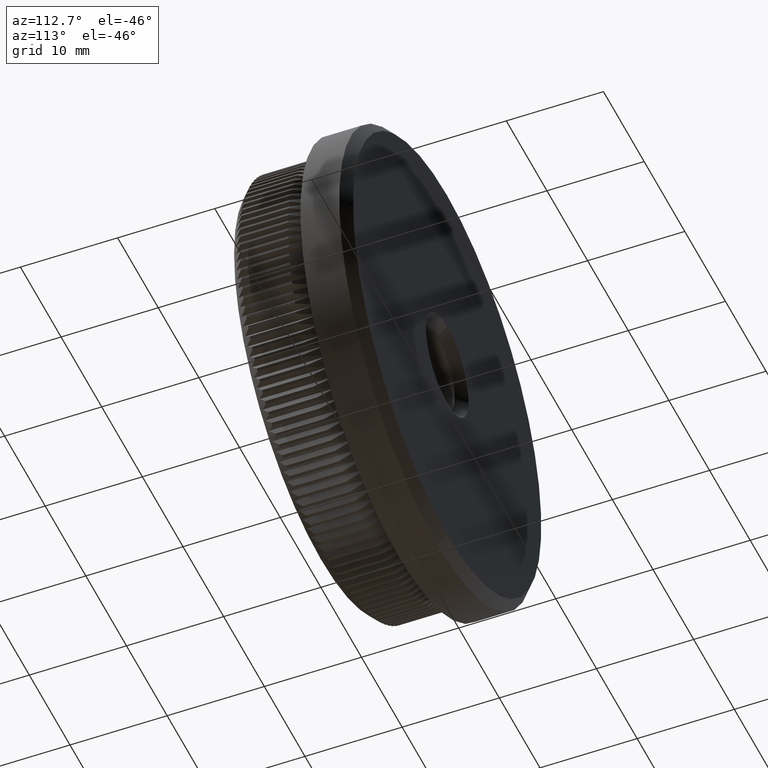
[diagram: clean part render]
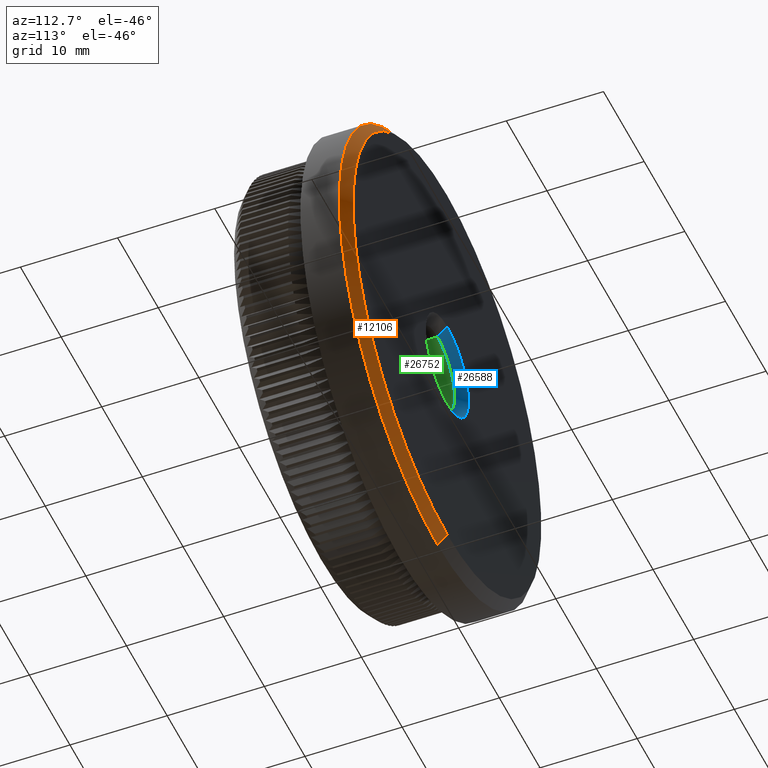
[diagram: same view with three faces highlighted in distinct colors, each labeled with its STEP entity id]
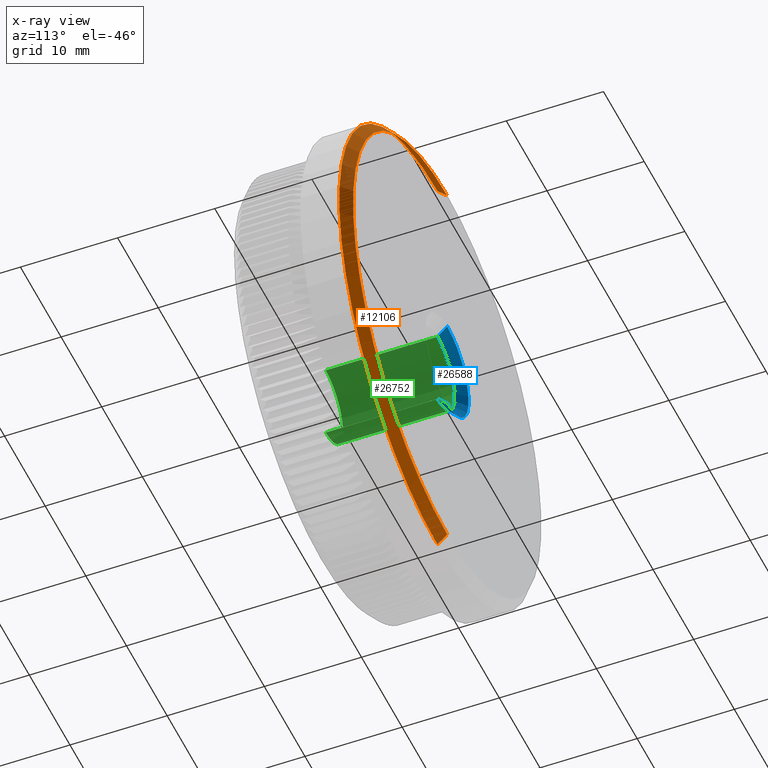
[diagram: x-ray of the same camera — body ghosted, the three highlighted faces saturated]
A machine part, auxiliary view with three faces highlighted in distinct colors.
The next image is the same camera in x-ray (body ghosted, the three faces saturated) — at least one of them is partly hidden behind the body in this view.
Their STEP definitions:

[orange] entity #12106 — the highlighted conical surface has half-angle 45 deg.
#902 = LINE ( 'NONE', #6254, #2888 ) ;
#2421 = VERTEX_POINT ( 'NONE', #4692 ) ;
#2622 = DIRECTION ( 'NONE',  ( 0.0000000000000000000, 1.000000000000000000, 0.0000000000000000000 ) ) ;
#2888 = VECTOR ( 'NONE', #26382, 1000.000000000000000 ) ;
#4593 = VECTOR ( 'NONE', #27314, 1000.000000000000000 ) ;
#4692 = CARTESIAN_POINT ( 'NONE',  ( 2.957522019940857900E-015, 11.99999999999999500, 24.14999999999999900 ) ) ;
#5175 = DIRECTION ( 'NONE',  ( 0.0000000000000000000, 0.0000000000000000000, 1.000000000000000000 ) ) ;
#5647 = EDGE_CURVE ( 'NONE', #17901, #2421, #28110, .T. ) ;
#5787 = DIRECTION ( 'NONE',  ( -0.0000000000000000000, -1.000000000000000000, -0.0000000000000000000 ) ) ;
#6254 = CARTESIAN_POINT ( 'NONE',  ( 0.0000000000000000000, 11.99999999999999500, -24.14999999999999900 ) ) ;
#11017 = DIRECTION ( 'NONE',  ( -0.0000000000000000000, -1.000000000000000000, -0.0000000000000000000 ) ) ;
#12106 = ADVANCED_FACE ( 'NONE', ( #31404 ), #13977, .T. ) ;
#12283 = EDGE_CURVE ( 'NONE', #20439, #2421, #16785, .T. ) ;
#13977 = CONICAL_SURFACE ( 'NONE', #26778, 24.14999999999999900, 0.7853981633974466100 ) ;
#15091 = CARTESIAN_POINT ( 'NONE',  ( 0.0000000000000000000, 11.99999999999999500, -24.14999999999999900 ) ) ;
#15806 = CIRCLE ( 'NONE', #29773, 23.14999999999999900 ) ;
#15982 = DIRECTION ( 'NONE',  ( 0.0000000000000000000, 0.0000000000000000000, 1.000000000000000000 ) ) ;
#16278 = ORIENTED_EDGE ( 'NONE', *, *, #5647, .F. ) ;
#16424 = EDGE_CURVE ( 'NONE', #20439, #22432, #15806, .T. ) ;
#16785 = LINE ( 'NONE', #19716, #4593 ) ;
#17901 = VERTEX_POINT ( 'NONE', #15091 ) ;
#19285 = ORIENTED_EDGE ( 'NONE', *, *, #16424, .F. ) ;
#19716 = CARTESIAN_POINT ( 'NONE',  ( 2.957522019940857900E-015, 11.99999999999999500, 24.14999999999999900 ) ) ;
#19972 = EDGE_LOOP ( 'NONE', ( #19285, #24118, #16278, #20738 ) ) ;
#20128 = AXIS2_PLACEMENT_3D ( 'NONE', #30780, #5787, #15982 ) ;
#20439 = VERTEX_POINT ( 'NONE', #30812 ) ;
#20738 = ORIENTED_EDGE ( 'NONE', *, *, #30218, .F. ) ;
#20955 = CARTESIAN_POINT ( 'NONE',  ( 0.0000000000000000000, 11.99999999999999500, 0.0000000000000000000 ) ) ;
#22432 = VERTEX_POINT ( 'NONE', #26185 ) ;
#24118 = ORIENTED_EDGE ( 'NONE', *, *, #12283, .T. ) ;
#26185 = CARTESIAN_POINT ( 'NONE',  ( 0.0000000000000000000, 13.00000000000000000, -23.14999999999999900 ) ) ;
#26382 = DIRECTION ( 'NONE',  ( 0.0000000000000000000, -0.7071067811865487900, -0.7071067811865463500 ) ) ;
#26778 = AXIS2_PLACEMENT_3D ( 'NONE', #20955, #11017, #30870 ) ;
#27314 = DIRECTION ( 'NONE',  ( 8.659560562354918100E-017, -0.7071067811865487900, 0.7071067811865463500 ) ) ;
#27860 = CARTESIAN_POINT ( 'NONE',  ( 0.0000000000000000000, 13.00000000000000000, 0.0000000000000000000 ) ) ;
#28110 = CIRCLE ( 'NONE', #20128, 24.14999999999999900 ) ;
#29773 = AXIS2_PLACEMENT_3D ( 'NONE', #27860, #2622, #5175 ) ;
#30218 = EDGE_CURVE ( 'NONE', #22432, #17901, #902, .T. ) ;
#30780 = CARTESIAN_POINT ( 'NONE',  ( 0.0000000000000000000, 11.99999999999999500, 0.0000000000000000000 ) ) ;
#30812 = CARTESIAN_POINT ( 'NONE',  ( 2.896289679983490000E-015, 13.00000000000000000, 23.14999999999999900 ) ) ;
#30870 = DIRECTION ( 'NONE',  ( 0.0000000000000000000, 0.0000000000000000000, -1.000000000000000000 ) ) ;
#31404 = FACE_OUTER_BOUND ( 'NONE', #19972, .T. ) ;

[blue] entity #26588 — the highlighted conical surface has half-angle 45 deg.
#375 = ORIENTED_EDGE ( 'NONE', *, *, #2447, .F. ) ;
#2279 = VERTEX_POINT ( 'NONE', #29812 ) ;
#2447 = EDGE_CURVE ( 'NONE', #23921, #2279, #11218, .T. ) ;
#5358 = CARTESIAN_POINT ( 'NONE',  ( 6.429395695523610100E-016, 13.00000000000000000, -5.250000000000004400 ) ) ;
#5579 = DIRECTION ( 'NONE',  ( -0.0000000000000000000, 1.000000000000000000, -0.0000000000000000000 ) ) ;
#6341 = CARTESIAN_POINT ( 'NONE',  ( 0.0000000000000000000, 13.00000000000000000, 5.250000000000004400 ) ) ;
#7582 = LINE ( 'NONE', #29045, #19383 ) ;
#9140 = AXIS2_PLACEMENT_3D ( 'NONE', #20668, #5579, #23216 ) ;
#9332 = CARTESIAN_POINT ( 'NONE',  ( 0.0000000000000000000, 13.00000000000000000, 0.0000000000000000000 ) ) ;
#10122 = FACE_OUTER_BOUND ( 'NONE', #18322, .T. ) ;
#11218 = CIRCLE ( 'NONE', #30409, 5.250000000000004400 ) ;
#15230 = DIRECTION ( 'NONE',  ( 0.0000000000000000000, 0.0000000000000000000, 1.000000000000000000 ) ) ;
#15562 = CARTESIAN_POINT ( 'NONE',  ( 0.0000000000000000000, 13.00000000000000000, 0.0000000000000000000 ) ) ;
#16368 = AXIS2_PLACEMENT_3D ( 'NONE', #9332, #16900, #24209 ) ;
#16750 = EDGE_CURVE ( 'NONE', #17953, #23921, #7582, .T. ) ;
#16900 = DIRECTION ( 'NONE',  ( -0.0000000000000000000, 1.000000000000000000, -0.0000000000000000000 ) ) ;
#16911 = VERTEX_POINT ( 'NONE', #28800 ) ;
#17790 = EDGE_CURVE ( 'NONE', #16911, #2279, #24906, .T. ) ;
#17953 = VERTEX_POINT ( 'NONE', #25244 ) ;
#18322 = EDGE_LOOP ( 'NONE', ( #28595, #30581, #375, #24191 ) ) ;
#19383 = VECTOR ( 'NONE', #21886, 1000.000000000000000 ) ;
#20591 = VECTOR ( 'NONE', #28041, 1000.000000000000000 ) ;
#20655 = DIRECTION ( 'NONE',  ( -0.0000000000000000000, -1.000000000000000000, -0.0000000000000000000 ) ) ;
#20668 = CARTESIAN_POINT ( 'NONE',  ( 0.0000000000000000000, 11.99999999999998000, 0.0000000000000000000 ) ) ;
#21568 = CONICAL_SURFACE ( 'NONE', #16368, 5.250000000000004400, 0.7853981633974426200 ) ;
#21886 = DIRECTION ( 'NONE',  ( 0.0000000000000000000, 0.7071067811865515700, 0.7071067811865435800 ) ) ;
#23216 = DIRECTION ( 'NONE',  ( 0.0000000000000000000, 0.0000000000000000000, 1.000000000000000000 ) ) ;
#23921 = VERTEX_POINT ( 'NONE', #6341 ) ;
#24191 = ORIENTED_EDGE ( 'NONE', *, *, #16750, .F. ) ;
#24209 = DIRECTION ( 'NONE',  ( 0.0000000000000000000, 0.0000000000000000000, 1.000000000000000000 ) ) ;
#24906 = LINE ( 'NONE', #5358, #20591 ) ;
#25244 = CARTESIAN_POINT ( 'NONE',  ( 5.204748896376248700E-016, 11.99999999999998000, 4.249999999999997300 ) ) ;
#26588 = ADVANCED_FACE ( 'NONE', ( #10122 ), #21568, .F. ) ;
#27355 = EDGE_CURVE ( 'NONE', #16911, #17953, #32570, .T. ) ;
#28041 = DIRECTION ( 'NONE',  ( 8.659560562354884800E-017, 0.7071067811865515700, -0.7071067811865435800 ) ) ;
#28595 = ORIENTED_EDGE ( 'NONE', *, *, #27355, .F. ) ;
#28800 = CARTESIAN_POINT ( 'NONE',  ( 0.0000000000000000000, 11.99999999999998000, -4.249999999999997300 ) ) ;
#29045 = CARTESIAN_POINT ( 'NONE',  ( 0.0000000000000000000, 13.00000000000000000, 5.250000000000004400 ) ) ;
#29812 = CARTESIAN_POINT ( 'NONE',  ( 6.429395695523610100E-016, 13.00000000000000000, -5.250000000000004400 ) ) ;
#30409 = AXIS2_PLACEMENT_3D ( 'NONE', #15562, #20655, #15230 ) ;
#30581 = ORIENTED_EDGE ( 'NONE', *, *, #17790, .T. ) ;
#32570 = CIRCLE ( 'NONE', #9140, 4.249999999999997300 ) ;

[green] entity #26752 — the highlighted cylindrical surface (partial cylindrical patch) has radius 4.25 mm, axis along (-0, -1, -0).
#1624 = EDGE_LOOP ( 'NONE', ( #5800, #16929, #21173, #5493 ) ) ;
#1785 = LINE ( 'NONE', #29858, #5350 ) ;
#2363 = CARTESIAN_POINT ( 'NONE',  ( 0.0000000000000000000, 0.4999999999999943900, 0.0000000000000000000 ) ) ;
#2867 = CARTESIAN_POINT ( 'NONE',  ( 5.204748896376248700E-016, 0.4999999999999943900, 4.249999999999997300 ) ) ;
#3397 = CYLINDRICAL_SURFACE ( 'NONE', #28221, 4.249999999999997300 ) ;
#4324 = VECTOR ( 'NONE', #32405, 1000.000000000000000 ) ;
#4690 = DIRECTION ( 'NONE',  ( 0.0000000000000000000, 0.0000000000000000000, -1.000000000000000000 ) ) ;
#5350 = VECTOR ( 'NONE', #27312, 1000.000000000000000 ) ;
#5493 = ORIENTED_EDGE ( 'NONE', *, *, #8643, .F. ) ;
#5579 = DIRECTION ( 'NONE',  ( -0.0000000000000000000, 1.000000000000000000, -0.0000000000000000000 ) ) ;
#5800 = ORIENTED_EDGE ( 'NONE', *, *, #27355, .T. ) ;
#7121 = DIRECTION ( 'NONE',  ( 0.0000000000000000000, -1.000000000000000000, 0.0000000000000000000 ) ) ;
#8643 = EDGE_CURVE ( 'NONE', #16911, #32636, #9858, .T. ) ;
#9140 = AXIS2_PLACEMENT_3D ( 'NONE', #20668, #5579, #23216 ) ;
#9858 = LINE ( 'NONE', #25122, #4324 ) ;
#16782 = FACE_OUTER_BOUND ( 'NONE', #1624, .T. ) ;
#16911 = VERTEX_POINT ( 'NONE', #28800 ) ;
#16929 = ORIENTED_EDGE ( 'NONE', *, *, #24638, .T. ) ;
#17953 = VERTEX_POINT ( 'NONE', #25244 ) ;
#19453 = EDGE_CURVE ( 'NONE', #24276, #32636, #20907, .T. ) ;
#20248 = DIRECTION ( 'NONE',  ( -0.0000000000000000000, -1.000000000000000000, -0.0000000000000000000 ) ) ;
#20668 = CARTESIAN_POINT ( 'NONE',  ( 0.0000000000000000000, 11.99999999999998000, 0.0000000000000000000 ) ) ;
#20907 = CIRCLE ( 'NONE', #24123, 4.249999999999997300 ) ;
#21173 = ORIENTED_EDGE ( 'NONE', *, *, #19453, .T. ) ;
#23216 = DIRECTION ( 'NONE',  ( 0.0000000000000000000, 0.0000000000000000000, 1.000000000000000000 ) ) ;
#24123 = AXIS2_PLACEMENT_3D ( 'NONE', #2363, #7121, #4690 ) ;
#24276 = VERTEX_POINT ( 'NONE', #2867 ) ;
#24638 = EDGE_CURVE ( 'NONE', #17953, #24276, #1785, .T. ) ;
#25122 = CARTESIAN_POINT ( 'NONE',  ( 0.0000000000000000000, 0.0000000000000000000, -4.249999999999997300 ) ) ;
#25244 = CARTESIAN_POINT ( 'NONE',  ( 5.204748896376248700E-016, 11.99999999999998000, 4.249999999999997300 ) ) ;
#26676 = CARTESIAN_POINT ( 'NONE',  ( 0.0000000000000000000, 0.4999999999999943900, -4.249999999999997300 ) ) ;
#26752 = ADVANCED_FACE ( 'NONE', ( #16782 ), #3397, .F. ) ;
#27312 = DIRECTION ( 'NONE',  ( -0.0000000000000000000, -1.000000000000000000, -0.0000000000000000000 ) ) ;
#27355 = EDGE_CURVE ( 'NONE', #16911, #17953, #32570, .T. ) ;
#27942 = DIRECTION ( 'NONE',  ( 0.0000000000000000000, 0.0000000000000000000, -1.000000000000000000 ) ) ;
#28165 = CARTESIAN_POINT ( 'NONE',  ( 0.0000000000000000000, 0.0000000000000000000, 0.0000000000000000000 ) ) ;
#28221 = AXIS2_PLACEMENT_3D ( 'NONE', #28165, #20248, #27942 ) ;
#28800 = CARTESIAN_POINT ( 'NONE',  ( 0.0000000000000000000, 11.99999999999998000, -4.249999999999997300 ) ) ;
#29858 = CARTESIAN_POINT ( 'NONE',  ( 5.204748896376248700E-016, 0.0000000000000000000, 4.249999999999997300 ) ) ;
#32405 = DIRECTION ( 'NONE',  ( -0.0000000000000000000, -1.000000000000000000, -0.0000000000000000000 ) ) ;
#32570 = CIRCLE ( 'NONE', #9140, 4.249999999999997300 ) ;
#32636 = VERTEX_POINT ( 'NONE', #26676 ) ;